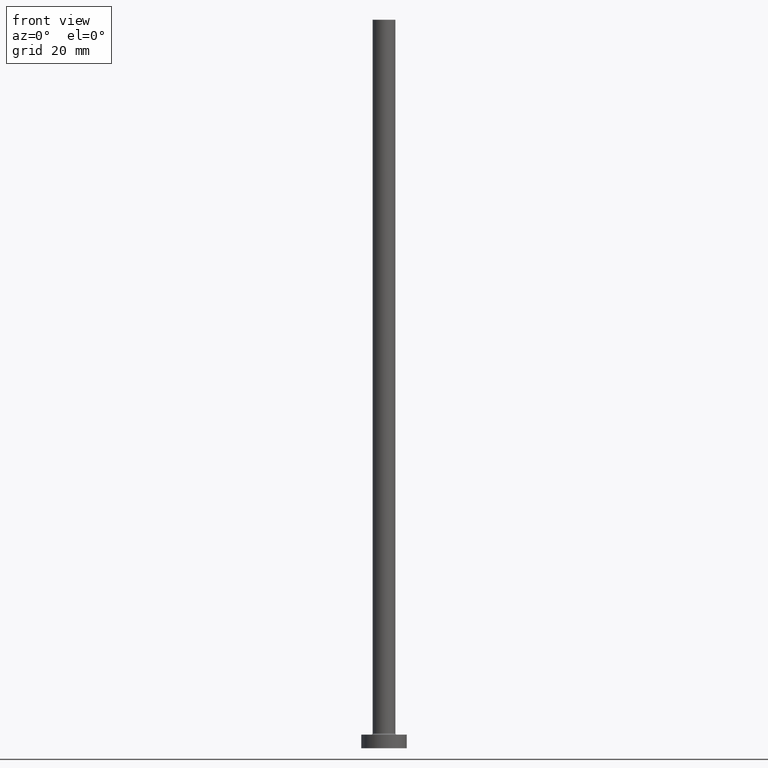
[diagram: clean part render]
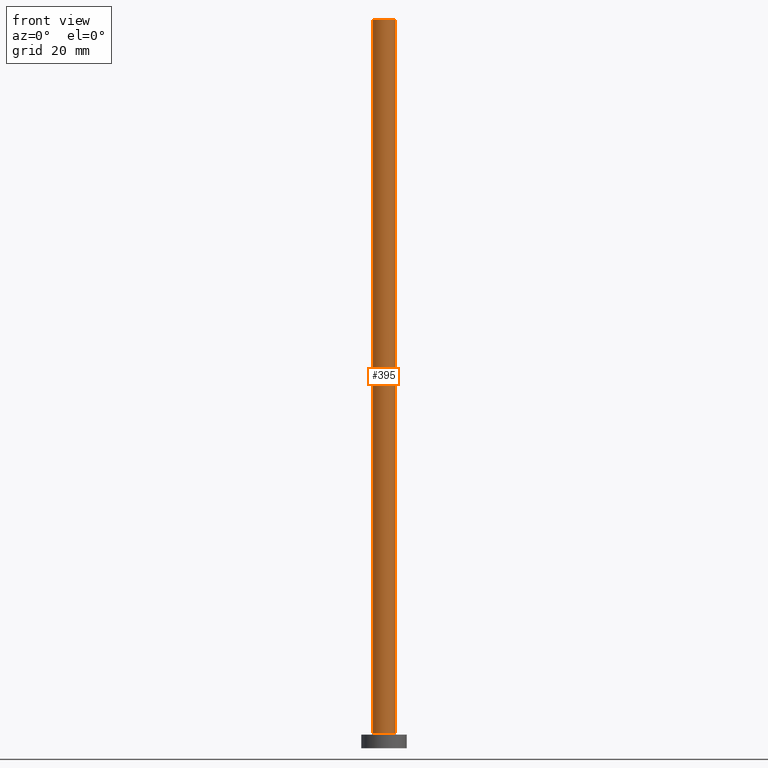
[diagram: same view with one face highlighted and labeled with its STEP entity id]
A machine part, front view. The second image highlights one B-rep face of the part: STEP entity #395.
In plain terms, the highlighted cylindrical surface (edge-blend (fillet) strip) has radius 2.5 mm, axis along (-0, -0, -1).
Its self-contained STEP definition (entity closure, byte-faithful):
#13 = EDGE_CURVE ( 'NONE', #139, #230, #275, .T. ) ;
#19 = CARTESIAN_POINT ( 'NONE',  ( -2.500000000000000000, 0.000000000000000000, 160.0000000000000000 ) ) ;
#24 = VERTEX_POINT ( 'NONE', #123 ) ;
#34 = EDGE_CURVE ( 'NONE', #385, #24, #351, .T. ) ;
#35 = CARTESIAN_POINT ( 'NONE',  ( 0.000000000000000000, 0.000000000000000000, 160.0000000000000000 ) ) ;
#54 = VECTOR ( 'NONE', #147, 1000.000000000000000 ) ;
#68 = DIRECTION ( 'NONE',  ( -1.000000000000000000, 0.000000000000000000, 0.000000000000000000 ) ) ;
#71 = ORIENTED_EDGE ( 'NONE', *, *, #13, .F. ) ;
#77 = CARTESIAN_POINT ( 'NONE',  ( 2.500000000000000000, 3.061616997868383141E-16, 160.0000000000000000 ) ) ;
#81 = CARTESIAN_POINT ( 'NONE',  ( 2.500000000000000000, 3.061616997868383141E-16, 160.0000000000000000 ) ) ;
#82 = ORIENTED_EDGE ( 'NONE', *, *, #415, .T. ) ;
#83 = LINE ( 'NONE', #81, #314 ) ;
#90 = CARTESIAN_POINT ( 'NONE',  ( 0.000000000000000000, 0.000000000000000000, 160.0000000000000000 ) ) ;
#96 = AXIS2_PLACEMENT_3D ( 'NONE', #90, #324, #284 ) ;
#110 = LINE ( 'NONE', #386, #54 ) ;
#123 = CARTESIAN_POINT ( 'NONE',  ( 2.500000000000000000, 3.061616997868383141E-16, 3.299999999999997158 ) ) ;
#139 = VERTEX_POINT ( 'NONE', #19 ) ;
#141 = CYLINDRICAL_SURFACE ( 'NONE', #263, 2.500000000000000000 ) ;
#146 = DIRECTION ( 'NONE',  ( -0.000000000000000000, -0.000000000000000000, -1.000000000000000000 ) ) ;
#147 = DIRECTION ( 'NONE',  ( -0.000000000000000000, -0.000000000000000000, -1.000000000000000000 ) ) ;
#150 = ORIENTED_EDGE ( 'NONE', *, *, #34, .T. ) ;
#172 = FACE_OUTER_BOUND ( 'NONE', #402, .T. ) ;
#230 = VERTEX_POINT ( 'NONE', #77 ) ;
#252 = DIRECTION ( 'NONE',  ( 1.000000000000000000, 0.000000000000000000, 0.000000000000000000 ) ) ;
#263 = AXIS2_PLACEMENT_3D ( 'NONE', #35, #396, #68 ) ;
#270 = EDGE_CURVE ( 'NONE', #230, #24, #83, .T. ) ;
#275 = CIRCLE ( 'NONE', #96, 2.500000000000000000 ) ;
#276 = AXIS2_PLACEMENT_3D ( 'NONE', #449, #401, #252 ) ;
#284 = DIRECTION ( 'NONE',  ( 1.000000000000000000, 0.000000000000000000, 0.000000000000000000 ) ) ;
#314 = VECTOR ( 'NONE', #146, 1000.000000000000000 ) ;
#315 = ORIENTED_EDGE ( 'NONE', *, *, #270, .F. ) ;
#324 = DIRECTION ( 'NONE',  ( 0.000000000000000000, 0.000000000000000000, 1.000000000000000000 ) ) ;
#351 = CIRCLE ( 'NONE', #276, 2.500000000000000000 ) ;
#385 = VERTEX_POINT ( 'NONE', #425 ) ;
#386 = CARTESIAN_POINT ( 'NONE',  ( -2.500000000000000000, 0.000000000000000000, 160.0000000000000000 ) ) ;
#395 = ADVANCED_FACE ( 'NONE', ( #172 ), #141, .T. ) ;
#396 = DIRECTION ( 'NONE',  ( -0.000000000000000000, -0.000000000000000000, -1.000000000000000000 ) ) ;
#401 = DIRECTION ( 'NONE',  ( 0.000000000000000000, 0.000000000000000000, 1.000000000000000000 ) ) ;
#402 = EDGE_LOOP ( 'NONE', ( #315, #71, #82, #150 ) ) ;
#415 = EDGE_CURVE ( 'NONE', #139, #385, #110, .T. ) ;
#425 = CARTESIAN_POINT ( 'NONE',  ( -2.500000000000000000, 0.000000000000000000, 3.299999999999997158 ) ) ;
#449 = CARTESIAN_POINT ( 'NONE',  ( 0.000000000000000000, 0.000000000000000000, 3.299999999999997158 ) ) ;